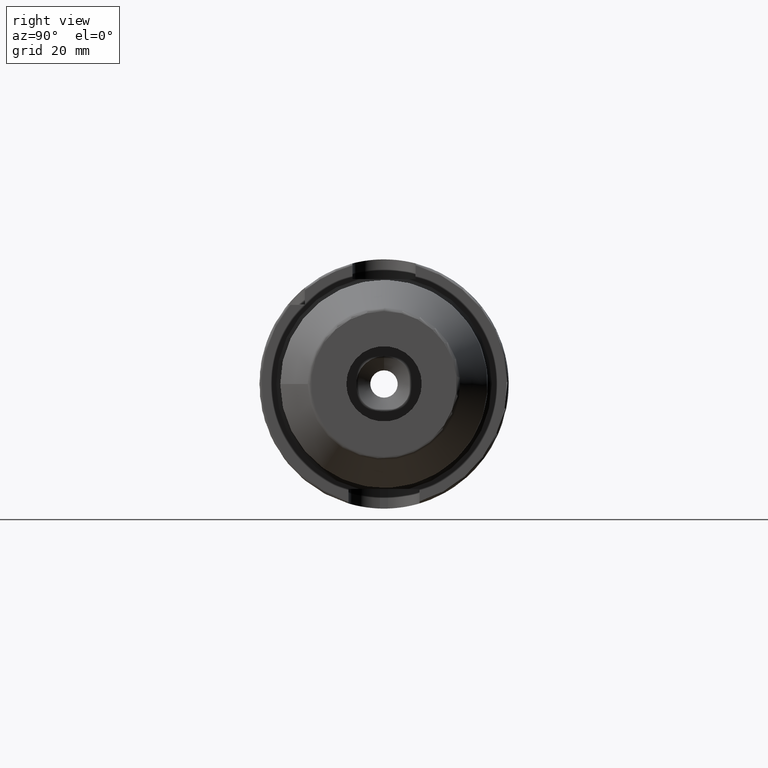
[diagram: clean part render]
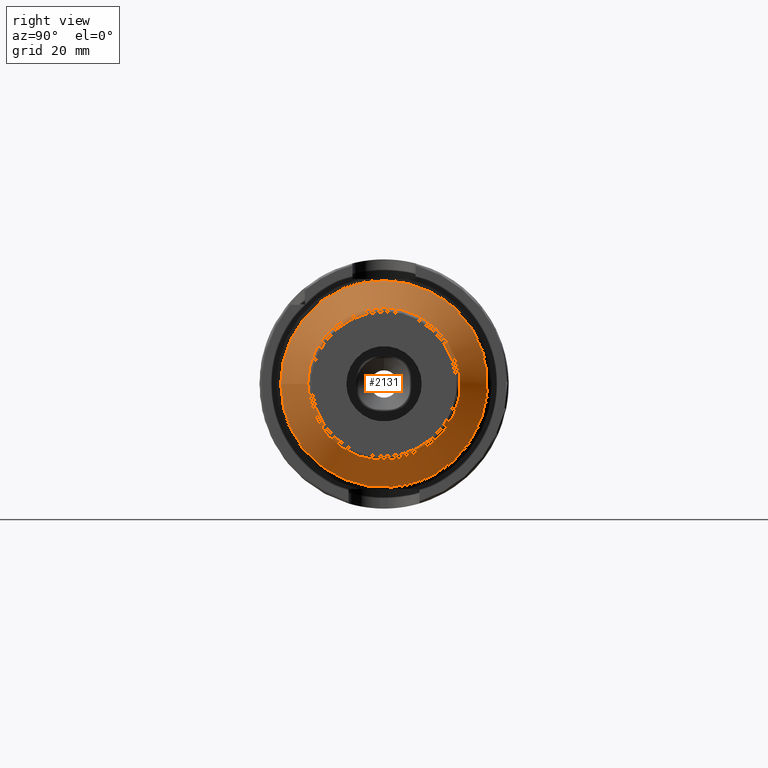
[diagram: same view with one face highlighted and labeled with its STEP entity id]
A machine part, right view. The second image highlights one B-rep face of the part: STEP entity #2131.
In plain terms, the highlighted conical surface has half-angle 30 deg.
Its self-contained STEP definition (entity closure, byte-faithful):
#155=CONICAL_SURFACE('',#2310,22.625,0.523598775598299);
#209=FACE_OUTER_BOUND('',#335,.T.);
#335=EDGE_LOOP('',(#1461,#1462,#1463,#1464,#1465,#1466));
#466=LINE('',#3298,#578);
#578=VECTOR('',#2641,22.625);
#712=CIRCLE('',#2308,19.2886751345948);
#713=CIRCLE('',#2309,19.2886751345948);
#714=CIRCLE('',#2311,26.1160254037844);
#715=CIRCLE('',#2312,26.1160254037844);
#855=VERTEX_POINT('',#3291);
#856=VERTEX_POINT('',#3293);
#857=VERTEX_POINT('',#3297);
#858=VERTEX_POINT('',#3299);
#1089=EDGE_CURVE('',#855,#856,#712,.T.);
#1090=EDGE_CURVE('',#856,#855,#713,.T.);
#1091=EDGE_CURVE('',#856,#857,#466,.T.);
#1092=EDGE_CURVE('',#858,#857,#714,.T.);
#1093=EDGE_CURVE('',#857,#858,#715,.T.);
#1461=ORIENTED_EDGE('',*,*,#1090,.F.);
#1462=ORIENTED_EDGE('',*,*,#1091,.T.);
#1463=ORIENTED_EDGE('',*,*,#1092,.F.);
#1464=ORIENTED_EDGE('',*,*,#1093,.F.);
#1465=ORIENTED_EDGE('',*,*,#1091,.F.);
#1466=ORIENTED_EDGE('',*,*,#1089,.F.);
#2131=ADVANCED_FACE('',(#209),#155,.T.);
#2308=AXIS2_PLACEMENT_3D('',#3294,#2635,#2636);
#2309=AXIS2_PLACEMENT_3D('',#3295,#2637,#2638);
#2310=AXIS2_PLACEMENT_3D('',#3296,#2639,#2640);
#2311=AXIS2_PLACEMENT_3D('',#3300,#2642,#2643);
#2312=AXIS2_PLACEMENT_3D('',#3301,#2644,#2645);
#2635=DIRECTION('center_axis',(1.,0.,0.));
#2636=DIRECTION('ref_axis',(0.,-1.,3.06161699786838E-17));
#2637=DIRECTION('center_axis',(1.,0.,0.));
#2638=DIRECTION('ref_axis',(0.,-1.,3.06161699786838E-17));
#2639=DIRECTION('center_axis',(-1.,0.,0.));
#2640=DIRECTION('ref_axis',(0.,1.,0.));
#2641=DIRECTION('',(-0.866025403784439,-0.5,-6.12323399573676E-17));
#2642=DIRECTION('center_axis',(-1.,0.,0.));
#2643=DIRECTION('ref_axis',(0.,-1.,3.06161699786838E-17));
#2644=DIRECTION('center_axis',(-1.,0.,0.));
#2645=DIRECTION('ref_axis',(0.,-1.,3.06161699786838E-17));
#3291=CARTESIAN_POINT('',(129.5,-2.36218142633747E-15,19.2886751345948));
#3293=CARTESIAN_POINT('',(129.5,-19.2886751345948,-2.36218142633747E-15));
#3294=CARTESIAN_POINT('Origin',(129.5,0.,-2.95272678292184E-15));
#3295=CARTESIAN_POINT('Origin',(129.5,0.,-2.95272678292184E-15));
#3296=CARTESIAN_POINT('Origin',(123.721315822563,0.,0.));
#3297=CARTESIAN_POINT('',(117.674682452695,-26.1160254037844,-3.19829069171956E-15));
#3298=CARTESIAN_POINT('',(123.721315822563,-22.625,-2.77076338307089E-15));
#3299=CARTESIAN_POINT('',(117.674682452695,-3.19829069171956E-15,26.1160254037844));
#3300=CARTESIAN_POINT('Origin',(117.674682452695,0.,-3.99786336464945E-15));
#3301=CARTESIAN_POINT('Origin',(117.674682452695,0.,-3.99786336464945E-15));